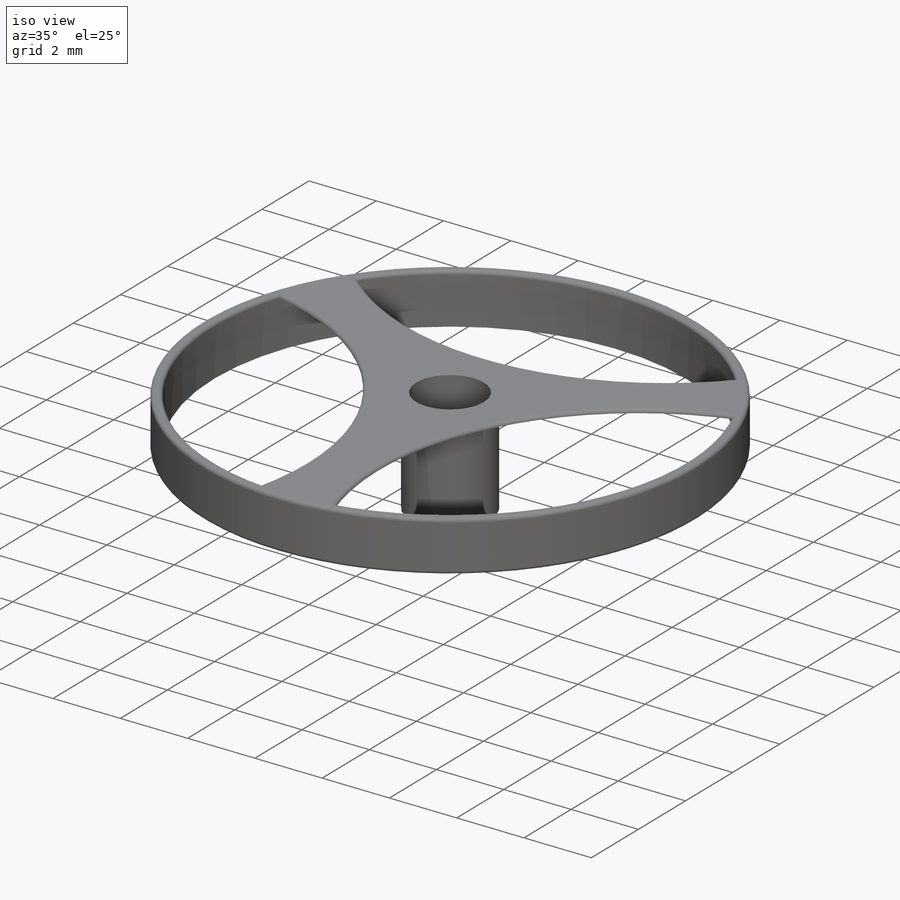
[diagram: iso view]
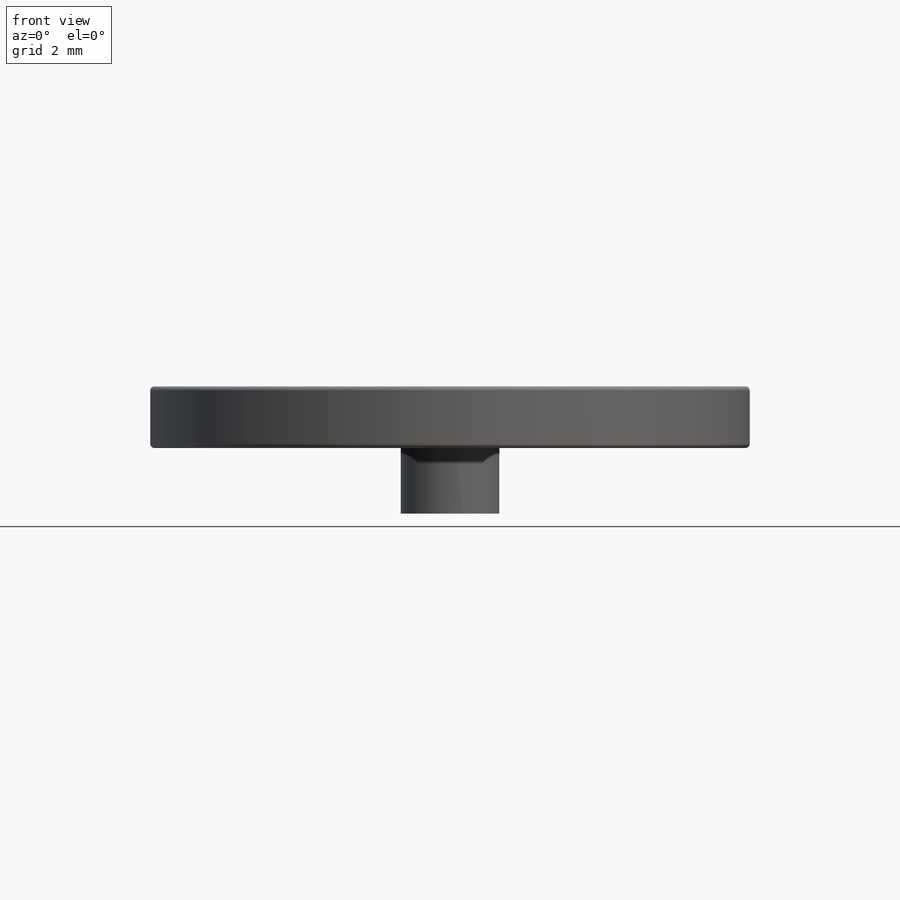
[diagram: front view]
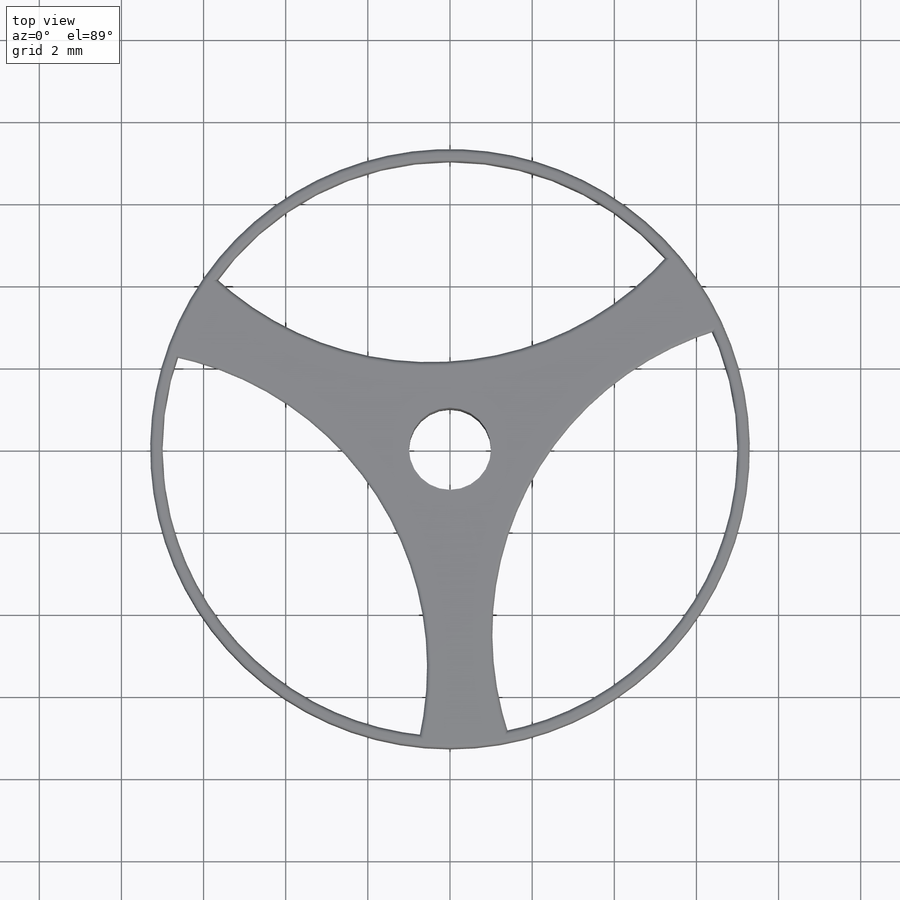
[diagram: top view]
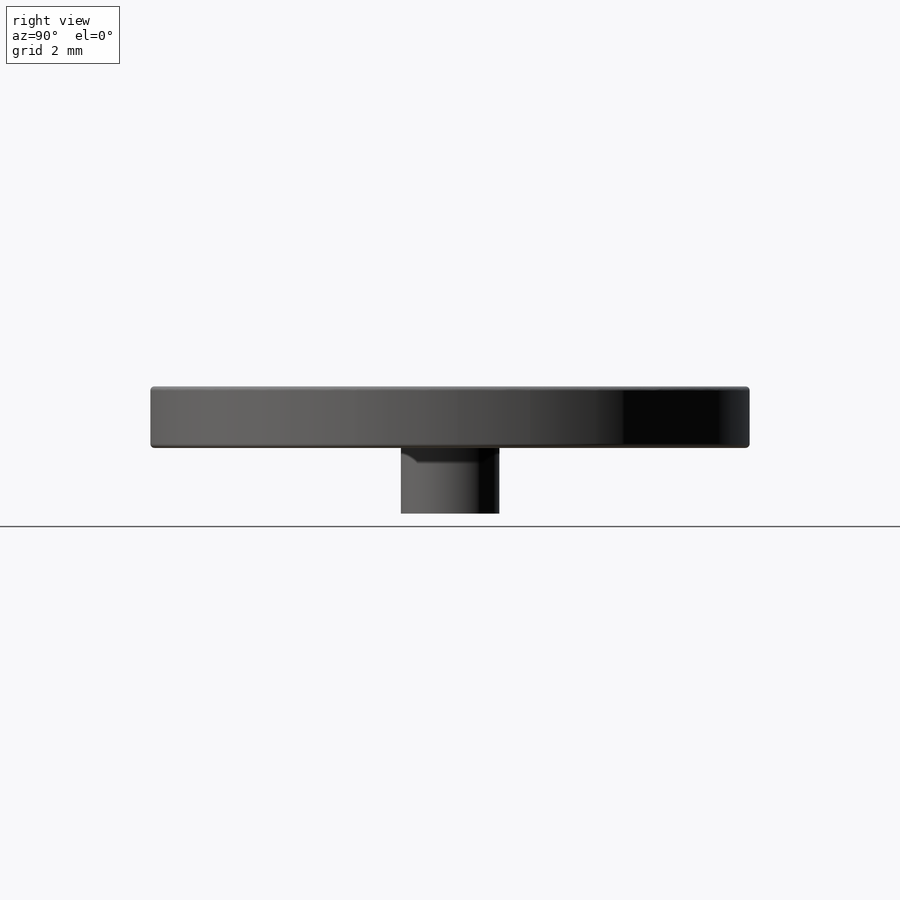
[diagram: right view]
SOLIDWORKS PART (.sldprt)
format: sldprt  version: not decoded by parser v0  size: 419,840 bytes
history: native  units: mm
features: sketch x5, cut_extrude x3, extrude x2, material x1, pattern_circular x1, fillet x1 (+11 scaffold rows collapsed)
feature tree (24):
  scaffold x11  (default folders/planes/origin — collapsed)
  material  "Material <not specified>"
  sketch  "Sketch1"  dims[D1=14.6mm]
  extrude  "Boss-Extrude1"  Depth=1.5mm
  sketch  "Sketch2"  dims[D1=14.0mm]
  cut_extrude  "Cut-Extrude1"  Depth=1.5mm
  pattern_circular  "CirPattern1"  Count=3 Angle=360deg
  sketch  "Sketch3"  dims[D1=2.0mm]
  cut_extrude  "Cut-Extrude2"  Depth=1.5mm
  sketch  "Sketch4"
  cut_extrude  "Cut-Extrude3"  Depth=1.4mm
  sketch  "Sketch5"  dims[D1=2.4mm]
  extrude  "Boss-Extrude2"  Depth=3mm
  fillet  "Fillet1"  Radius=0.1mm
decode coverage: 11 of 12 modeling features carry decoded parameters
note: suppression state not decoded; provenance and decode notes live in map.json
